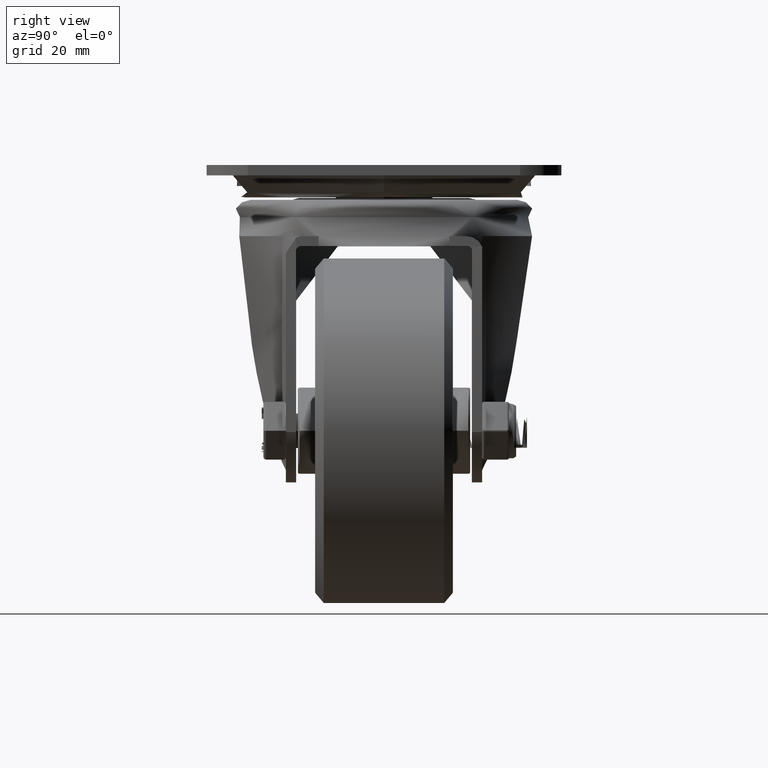
[diagram: clean part render]
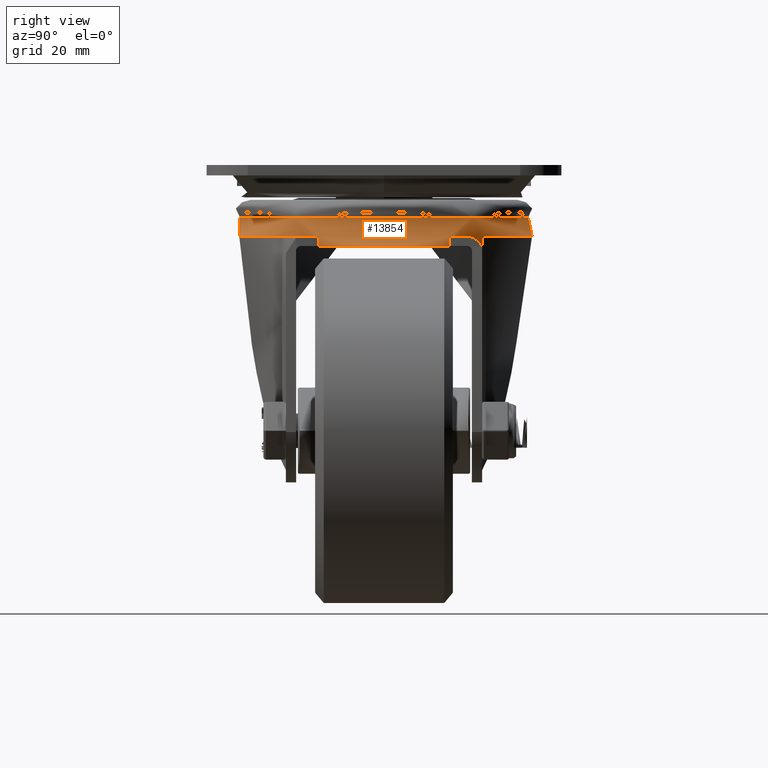
[diagram: same view with one face highlighted and labeled with its STEP entity id]
A machine part, right view. The second image highlights one B-rep face of the part: STEP entity #13854.
In plain terms, the highlighted cylindrical surface (bore or boss wall) has radius 44 mm, axis along (-0, 0, 1).
Its self-contained STEP definition (entity closure, byte-faithful):
#671=B_SPLINE_CURVE_WITH_KNOTS('',3,(#24912,#24913,#24914,#24915,#24916,
#24917,#24918,#24919),.UNSPECIFIED.,.F.,.F.,(4,2,2,4),(-0.848624848383157,
-0.613011995335325,-0.377399142287493,-0.203155399129932),.UNSPECIFIED.);
#1612=CYLINDRICAL_SURFACE('',#14930,44.);
#2213=FACE_OUTER_BOUND('',#3054,.T.);
#3054=EDGE_LOOP('',(#11968,#11969,#11970,#11971,#11972,#11973,#11974,#11975,
#11976,#11977,#11978,#11979,#11980,#11981,#11982));
#4103=LINE('',#24896,#5125);
#4104=LINE('',#24904,#5126);
#4105=LINE('',#24908,#5127);
#4106=LINE('',#24921,#5128);
#5125=VECTOR('',#17369,44.);
#5126=VECTOR('',#17376,1.);
#5127=VECTOR('',#17379,1.);
#5128=VECTOR('',#17382,1.);
#5685=CIRCLE('',#14927,44.);
#5688=CIRCLE('',#14931,44.);
#5689=CIRCLE('',#14932,44.);
#5690=CIRCLE('',#14933,44.);
#5691=CIRCLE('',#14934,44.);
#5692=CIRCLE('',#14935,44.);
#5693=CIRCLE('',#14936,44.);
#5694=CIRCLE('',#14937,43.9978996501855);
#5695=CIRCLE('',#14938,44.);
#6782=VERTEX_POINT('',#24889);
#6784=VERTEX_POINT('',#24895);
#6785=VERTEX_POINT('',#24897);
#6786=VERTEX_POINT('',#24899);
#6787=VERTEX_POINT('',#24901);
#6788=VERTEX_POINT('',#24903);
#6789=VERTEX_POINT('',#24905);
#6790=VERTEX_POINT('',#24907);
#6791=VERTEX_POINT('',#24909);
#6792=VERTEX_POINT('',#24911);
#6793=VERTEX_POINT('',#24920);
#6794=VERTEX_POINT('',#24922);
#6795=VERTEX_POINT('',#24924);
#8573=EDGE_CURVE('',#6782,#6782,#5685,.T.);
#8576=EDGE_CURVE('',#6782,#6784,#4103,.T.);
#8577=EDGE_CURVE('',#6785,#6784,#5688,.T.);
#8578=EDGE_CURVE('',#6786,#6785,#5689,.T.);
#8579=EDGE_CURVE('',#6787,#6786,#5690,.T.);
#8580=EDGE_CURVE('',#6788,#6787,#4104,.T.);
#8581=EDGE_CURVE('',#6789,#6788,#5691,.T.);
#8582=EDGE_CURVE('',#6790,#6789,#4105,.T.);
#8583=EDGE_CURVE('',#6791,#6790,#5692,.T.);
#8584=EDGE_CURVE('',#6791,#6792,#671,.T.);
#8585=EDGE_CURVE('',#6793,#6792,#4106,.T.);
#8586=EDGE_CURVE('',#6793,#6794,#5693,.T.);
#8587=EDGE_CURVE('',#6795,#6794,#5694,.T.);
#8588=EDGE_CURVE('',#6784,#6795,#5695,.T.);
#11968=ORIENTED_EDGE('',*,*,#8573,.T.);
#11969=ORIENTED_EDGE('',*,*,#8576,.T.);
#11970=ORIENTED_EDGE('',*,*,#8577,.F.);
#11971=ORIENTED_EDGE('',*,*,#8578,.F.);
#11972=ORIENTED_EDGE('',*,*,#8579,.F.);
#11973=ORIENTED_EDGE('',*,*,#8580,.F.);
#11974=ORIENTED_EDGE('',*,*,#8581,.F.);
#11975=ORIENTED_EDGE('',*,*,#8582,.F.);
#11976=ORIENTED_EDGE('',*,*,#8583,.F.);
#11977=ORIENTED_EDGE('',*,*,#8584,.T.);
#11978=ORIENTED_EDGE('',*,*,#8585,.F.);
#11979=ORIENTED_EDGE('',*,*,#8586,.T.);
#11980=ORIENTED_EDGE('',*,*,#8587,.F.);
#11981=ORIENTED_EDGE('',*,*,#8588,.F.);
#11982=ORIENTED_EDGE('',*,*,#8576,.F.);
#13854=ADVANCED_FACE('',(#2213),#1612,.T.);
#14927=AXIS2_PLACEMENT_3D('',#24890,#17361,#17362);
#14930=AXIS2_PLACEMENT_3D('',#24894,#17367,#17368);
#14931=AXIS2_PLACEMENT_3D('',#24898,#17370,#17371);
#14932=AXIS2_PLACEMENT_3D('',#24900,#17372,#17373);
#14933=AXIS2_PLACEMENT_3D('',#24902,#17374,#17375);
#14934=AXIS2_PLACEMENT_3D('',#24906,#17377,#17378);
#14935=AXIS2_PLACEMENT_3D('',#24910,#17380,#17381);
#14936=AXIS2_PLACEMENT_3D('',#24923,#17383,#17384);
#14937=AXIS2_PLACEMENT_3D('',#24925,#17385,#17386);
#14938=AXIS2_PLACEMENT_3D('',#24926,#17387,#17388);
#17361=DIRECTION('center_axis',(0.,0.,-1.));
#17362=DIRECTION('ref_axis',(-1.,0.,0.));
#17367=DIRECTION('center_axis',(0.,0.,1.));
#17368=DIRECTION('ref_axis',(-1.,0.,0.));
#17369=DIRECTION('',(0.,0.,-1.));
#17370=DIRECTION('center_axis',(0.,0.,-1.));
#17371=DIRECTION('ref_axis',(-1.,0.,0.));
#17372=DIRECTION('center_axis',(0.,0.,-1.));
#17373=DIRECTION('ref_axis',(-1.,0.,0.));
#17374=DIRECTION('center_axis',(0.,0.,-1.));
#17375=DIRECTION('ref_axis',(-1.,0.,0.));
#17376=DIRECTION('',(0.,0.,1.));
#17377=DIRECTION('center_axis',(0.,0.,-1.));
#17378=DIRECTION('ref_axis',(1.,0.,0.));
#17379=DIRECTION('',(0.,0.,-1.));
#17380=DIRECTION('center_axis',(0.,0.,-1.));
#17381=DIRECTION('ref_axis',(-1.,0.,0.));
#17382=DIRECTION('',(0.,0.,-1.));
#17383=DIRECTION('center_axis',(0.,0.,1.));
#17384=DIRECTION('ref_axis',(-1.,0.,0.));
#17385=DIRECTION('center_axis',(0.,0.,-1.));
#17386=DIRECTION('ref_axis',(0.896680881662884,-0.442677531009056,0.));
#17387=DIRECTION('center_axis',(0.,0.,-1.));
#17388=DIRECTION('ref_axis',(-1.,0.,0.));
#24889=CARTESIAN_POINT('',(-37.096693940411,195.278189306354,-15.1312605821944));
#24890=CARTESIAN_POINT('Origin',(-81.096693940411,195.278189306354,-15.1312605821944));
#24894=CARTESIAN_POINT('Origin',(-81.096693940411,195.278189306354,4.09807510342608));
#24895=CARTESIAN_POINT('',(-37.096693940411,195.278189306354,-20.6312605821945));
#24896=CARTESIAN_POINT('',(-37.096693940411,195.278189306354,4.09807510342608));
#24897=CARTESIAN_POINT('',(-41.6427472721712,214.756025230801,-20.6312605821945));
#24898=CARTESIAN_POINT('Origin',(-81.096693940411,195.278189306354,-20.6312605821945));
#24899=CARTESIAN_POINT('',(-118.295484243323,218.778189306354,-20.6312605821945));
#24900=CARTESIAN_POINT('Origin',(-81.096693940411,195.278189306354,-20.6312605821945));
#24901=CARTESIAN_POINT('',(-120.799433058751,214.243750371111,-20.6312605821945));
#24902=CARTESIAN_POINT('Origin',(-81.096693940411,195.278189306354,-20.6312605821945));
#24903=CARTESIAN_POINT('',(-120.799433058751,214.243750371111,-23.6312605821945));
#24904=CARTESIAN_POINT('',(-120.799433058751,214.243750371111,4.09807510342608));
#24905=CARTESIAN_POINT('',(-120.799433058751,176.312628241596,-23.6312605821945));
#24906=CARTESIAN_POINT('Origin',(-81.096693940411,195.278189306354,-23.6312605821945));
#24907=CARTESIAN_POINT('',(-120.799433058751,176.312628241596,-20.6312605821945));
#24908=CARTESIAN_POINT('',(-120.799433058751,176.312628241596,4.09807510342608));
#24909=CARTESIAN_POINT('',(-118.02847990606,171.36076500131,-20.6312605821945));
#24910=CARTESIAN_POINT('Origin',(-81.096693940411,195.278189306354,-20.6312605821945));
#24911=CARTESIAN_POINT('',(-114.619074524135,166.778189306354,-23.6312605821945));
#24912=CARTESIAN_POINT('Ctrl Pts',(-118.02847990606,171.36076500131,-20.6312605821945));
#24913=CARTESIAN_POINT('Ctrl Pts',(-117.601566831964,170.701552618013,-20.6312605821945));
#24914=CARTESIAN_POINT('Ctrl Pts',(-117.123726872623,170.006073893259,-20.7679483169104));
#24915=CARTESIAN_POINT('Ctrl Pts',(-116.191149986885,168.726238828643,-21.3247230402455));
#24916=CARTESIAN_POINT('Ctrl Pts',(-115.736885025657,168.141213879347,-21.7440630967616));
#24917=CARTESIAN_POINT('Ctrl Pts',(-115.083685861696,167.330375010913,-22.6285644365033));
#24918=CARTESIAN_POINT('Ctrl Pts',(-114.816200405144,167.010053474989,-23.0999930303352));
#24919=CARTESIAN_POINT('Ctrl Pts',(-114.619074524135,166.778189306354,-23.6312605821944));
#24920=CARTESIAN_POINT('',(-114.619074524134,166.778189306354,-20.6312605821945));
#24921=CARTESIAN_POINT('',(-114.619074524135,166.778189306354,-20.6312605821945));
#24922=CARTESIAN_POINT('',(-42.1640598142694,174.778189306354,-20.6312605821945));
#24923=CARTESIAN_POINT('Origin',(-81.096693940411,195.278189306354,-20.6312605821945));
#24924=CARTESIAN_POINT('',(-41.6427472721715,175.800353381907,-20.6312605821945));
#24925=CARTESIAN_POINT('Origin',(-81.0948227218146,195.277234968635,-20.6312605821945));
#24926=CARTESIAN_POINT('Origin',(-81.096693940411,195.278189306354,-20.6312605821945));